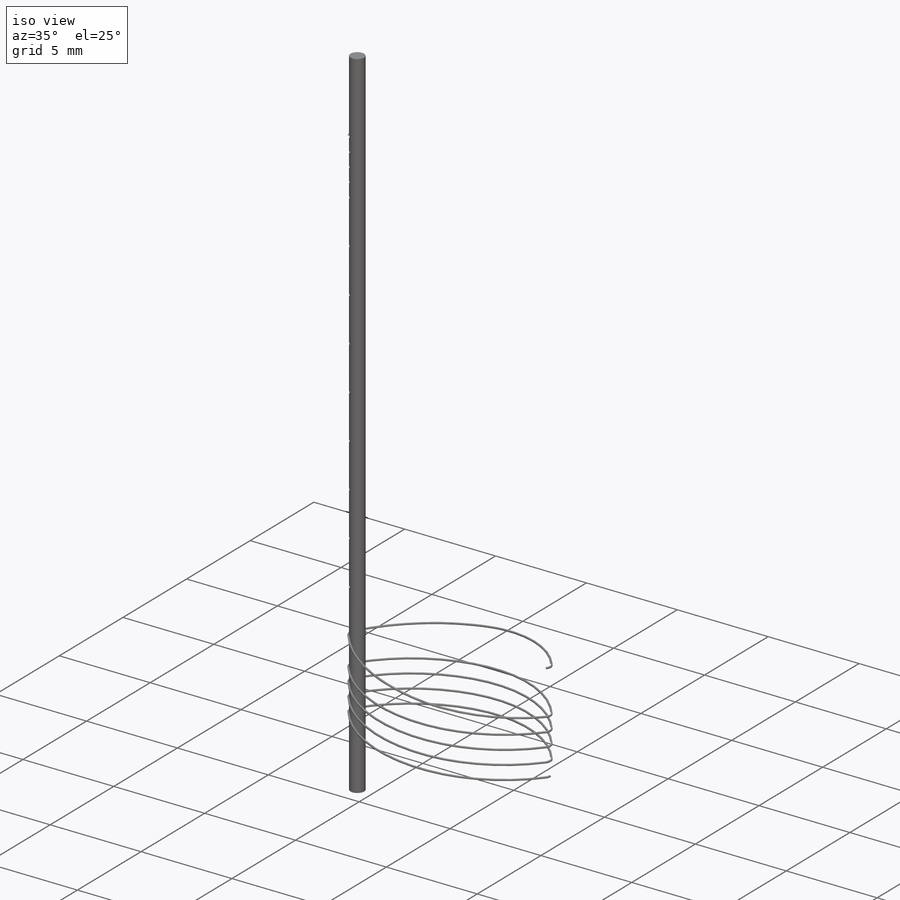
[diagram: iso view]
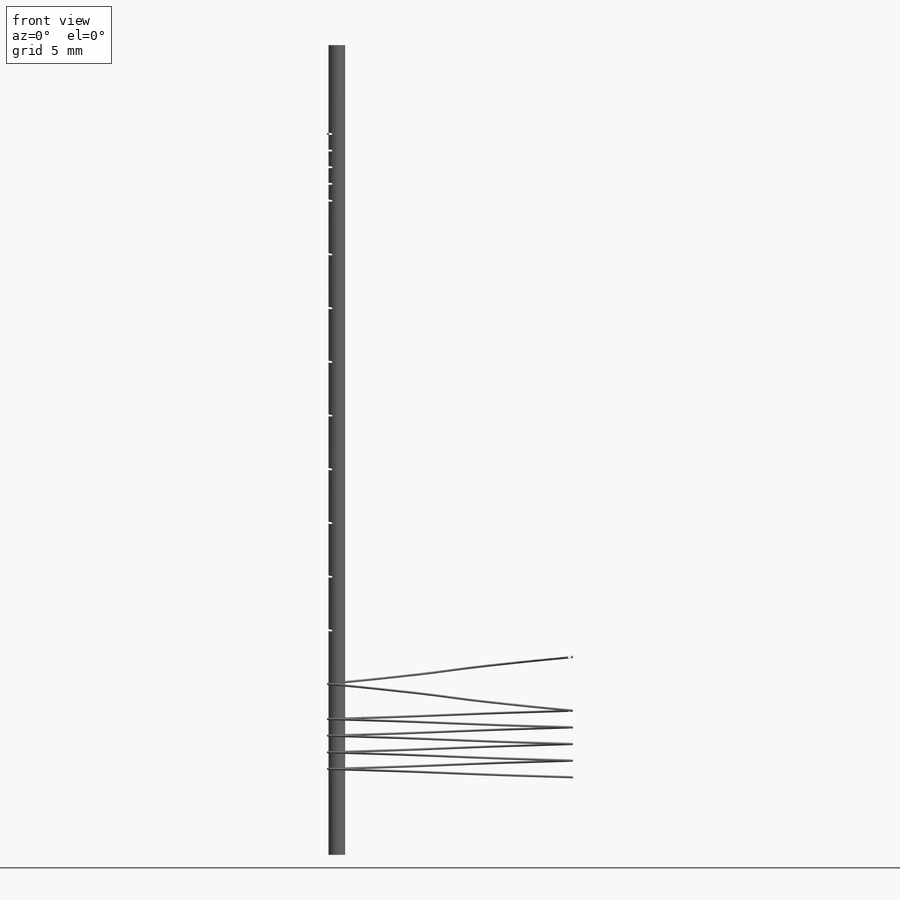
[diagram: front view]
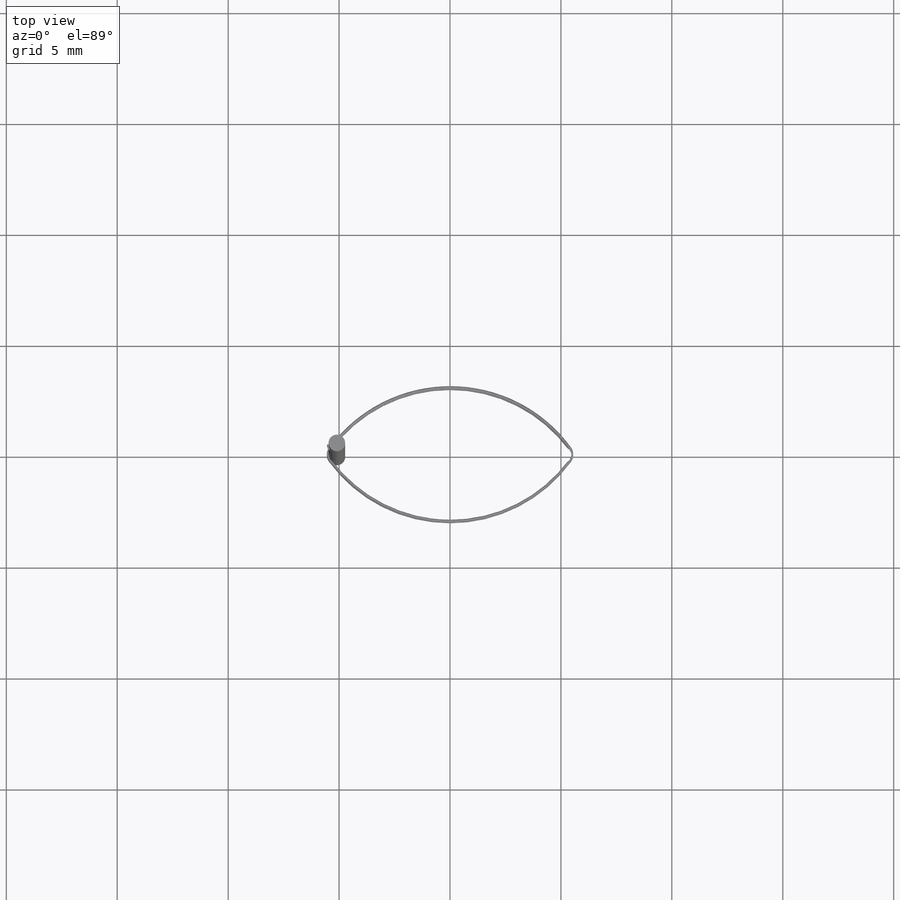
[diagram: top view]
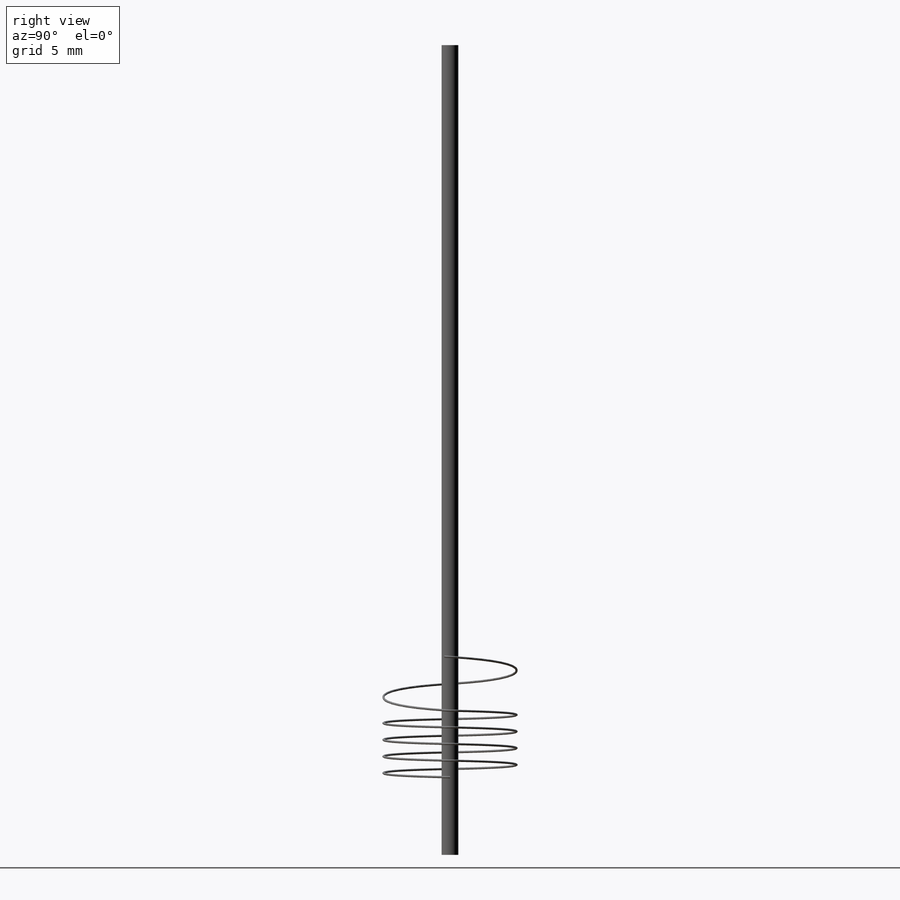
[diagram: right view]
SOLIDWORKS PART (.sldprt)
format: sldprt  version: not decoded by parser v0  size: 2,703,872 bytes
history: native  units: mm
features: sketch x17, plane x3, helix x3, surface_op x3, extrude x2, material x1, sweep x1 (+12 scaffold rows collapsed)
feature tree (42):
  scaffold x12  (default folders/planes/origin — collapsed)
  material  "Chrome Stainless Steel"
  plane  "Plane2"  Offset=29mm
  sketch  "Sketch1"  dims[D1=0.75mm D2=10.2mm D3=5.1mm]
  extrude  "Extrude1"  Depth=33mm
  sketch  "Sketch2"  dims[D2=0.75mm D1=5.1mm]
  extrude  "Extrude2"  Depth=38.5mm
  sketch  "Sketch3"  dims[D1=2.0mm]
  helix  "Helix/Spiral1"  Pitch=3mm
  sketch  "Sketch4"  dims[D1=5.0mm]
  sketch  "Sketch5"  dims[c1.D1=6.0mm c1.D2=0.4mm c1.D3=0.4mm c2.D1=~30.620965mm]
  surface_op  "Surface-Extrude1"
  sketch  "3DSketch6"
  sketch  "Sketch7"  dims[D1=0.1mm]
  plane  "Plane1"
  sketch  "Sketch8"  dims[D1=2.0mm]
  helix  "Helix/Spiral2"  Pitch=23mm
  sketch  "Sketch9"  dims[D1=5.0mm]
  sketch  "Sketch10"  dims[D1=6.0mm D2=0.4mm D3=0.4mm]
  surface_op  "Surface-Extrude2"
  sketch  "3DSketch3"
  plane  "Plane3"
  sketch  "Sketch11"  dims[D1=2.0mm]
  helix  "Helix/Spiral3"  Pitch=3mm
  sketch  "Sketch12"  dims[D1=5.0mm]
  sketch  "Sketch13"  dims[D1=6.0mm D2=0.4mm]
  surface_op  "Surface-Extrude3"
  sketch  "3DSketch7"
  sketch  "Sketch14"  dims[D1=0.1mm]
  sketch  "Sketch15"  dims[D1=0.1mm D2=5.5mm]
  sweep  "Sweep1"
decode coverage: 19 of 26 modeling features carry decoded parameters
note: ~ marks probable driven/reference dimensions
note: suppression state not decoded; provenance and decode notes live in map.json
